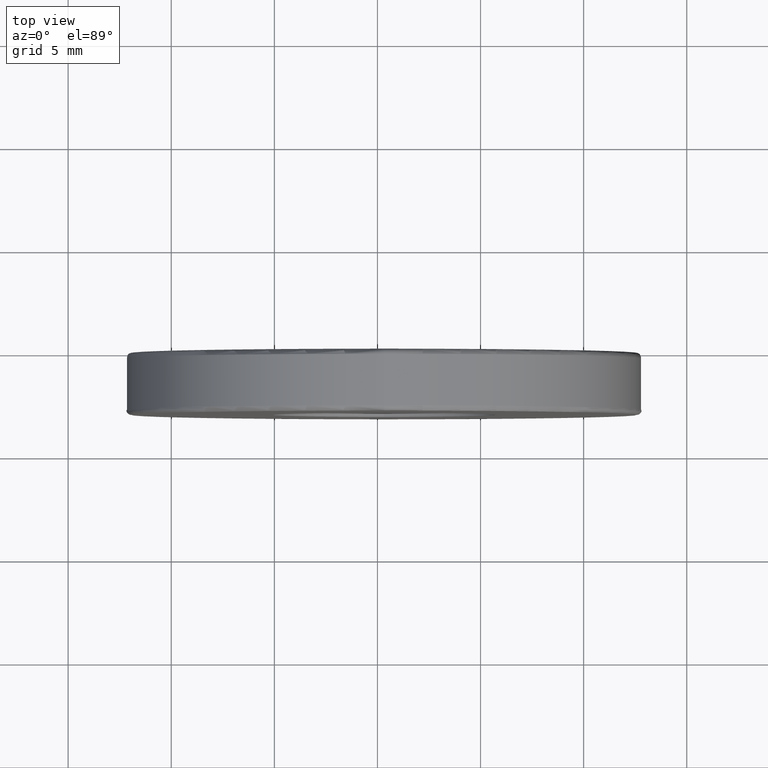
[diagram: clean part render]
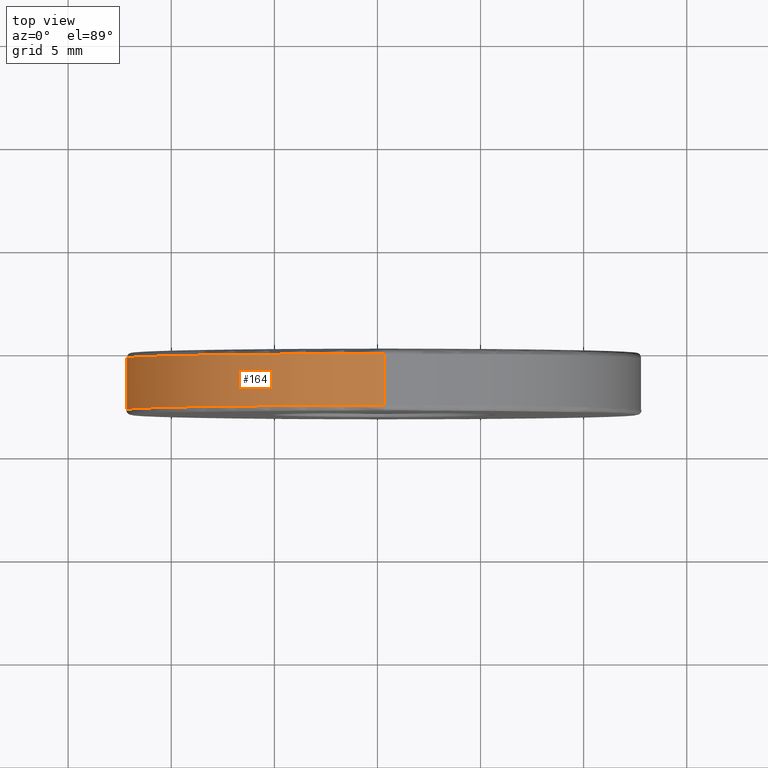
[diagram: same view with one face highlighted and labeled with its STEP entity id]
A machine part, top view. The second image highlights one B-rep face of the part: STEP entity #164.
In plain terms, the highlighted cylindrical surface (partial cylindrical patch) has radius 12.5 mm, axis along (-0, -1, -0).
Its self-contained STEP definition (entity closure, byte-faithful):
#6 = EDGE_CURVE ( 'NONE', #191, #129, #316, .T. ) ;
#32 = CARTESIAN_POINT ( 'NONE',  ( -4.682026255059964726, -0.3449759769982747581, 25.00000000000000000 ) ) ;
#99 = CARTESIAN_POINT ( 'NONE',  ( -4.682026255059964726, -0.09497597699827478590, 25.00000000000000000 ) ) ;
#107 = CARTESIAN_POINT ( 'NONE',  ( -4.682026255059964726, -0.3449759769982747581, 37.50000000000000711 ) ) ;
#113 = AXIS2_PLACEMENT_3D ( 'NONE', #32, #184, #609 ) ;
#129 = VERTEX_POINT ( 'NONE', #475 ) ;
#151 = DIRECTION ( 'NONE',  ( -0.0000000000000000000, -1.000000000000000000, -0.0000000000000000000 ) ) ;
#164 = ADVANCED_FACE ( 'NONE', ( #480 ), #576, .T. ) ;
#180 = ORIENTED_EDGE ( 'NONE', *, *, #6, .T. ) ;
#184 = DIRECTION ( 'NONE',  ( -0.0000000000000000000, -1.000000000000000000, -0.0000000000000000000 ) ) ;
#191 = VERTEX_POINT ( 'NONE', #107 ) ;
#251 = CARTESIAN_POINT ( 'NONE',  ( -4.682026255059962949, -2.844975976998274536, 37.50000000000000711 ) ) ;
#252 = AXIS2_PLACEMENT_3D ( 'NONE', #99, #486, #336 ) ;
#264 = VECTOR ( 'NONE', #338, 1000.000000000000000 ) ;
#286 = EDGE_CURVE ( 'NONE', #311, #300, #343, .T. ) ;
#300 = VERTEX_POINT ( 'NONE', #251 ) ;
#311 = VERTEX_POINT ( 'NONE', #450 ) ;
#316 = CIRCLE ( 'NONE', #113, 12.50000000000000355 ) ;
#336 = DIRECTION ( 'NONE',  ( 0.0000000000000000000, 0.0000000000000000000, -1.000000000000000000 ) ) ;
#338 = DIRECTION ( 'NONE',  ( -0.0000000000000000000, -1.000000000000000000, -0.0000000000000000000 ) ) ;
#343 = CIRCLE ( 'NONE', #467, 12.50000000000000355 ) ;
#370 = ORIENTED_EDGE ( 'NONE', *, *, #602, .F. ) ;
#382 = CARTESIAN_POINT ( 'NONE',  ( -4.682026255059962949, -0.09497597699827478590, 37.50000000000000711 ) ) ;
#450 = CARTESIAN_POINT ( 'NONE',  ( -4.682026255059964726, -2.844975976998274536, 12.50000000000000000 ) ) ;
#467 = AXIS2_PLACEMENT_3D ( 'NONE', #550, #494, #500 ) ;
#471 = LINE ( 'NONE', #577, #264 ) ;
#473 = EDGE_LOOP ( 'NONE', ( #370, #180, #491, #501 ) ) ;
#475 = CARTESIAN_POINT ( 'NONE',  ( -4.682026255059962949, -0.3449759769982747581, 12.50000000000000000 ) ) ;
#480 = FACE_OUTER_BOUND ( 'NONE', #473, .T. ) ;
#486 = DIRECTION ( 'NONE',  ( -0.0000000000000000000, -1.000000000000000000, -0.0000000000000000000 ) ) ;
#491 = ORIENTED_EDGE ( 'NONE', *, *, #610, .T. ) ;
#494 = DIRECTION ( 'NONE',  ( 0.0000000000000000000, 1.000000000000000000, 0.0000000000000000000 ) ) ;
#500 = DIRECTION ( 'NONE',  ( 0.0000000000000000000, 0.0000000000000000000, 1.000000000000000000 ) ) ;
#501 = ORIENTED_EDGE ( 'NONE', *, *, #286, .T. ) ;
#531 = VECTOR ( 'NONE', #151, 1000.000000000000000 ) ;
#550 = CARTESIAN_POINT ( 'NONE',  ( -4.682026255059964726, -2.844975976998274536, 25.00000000000000000 ) ) ;
#576 = CYLINDRICAL_SURFACE ( 'NONE', #252, 12.50000000000000000 ) ;
#577 = CARTESIAN_POINT ( 'NONE',  ( -4.682026255059964726, -0.09497597699827478590, 12.50000000000000000 ) ) ;
#580 = LINE ( 'NONE', #382, #531 ) ;
#602 = EDGE_CURVE ( 'NONE', #191, #300, #580, .T. ) ;
#609 = DIRECTION ( 'NONE',  ( 0.0000000000000000000, 0.0000000000000000000, 1.000000000000000000 ) ) ;
#610 = EDGE_CURVE ( 'NONE', #129, #311, #471, .T. ) ;